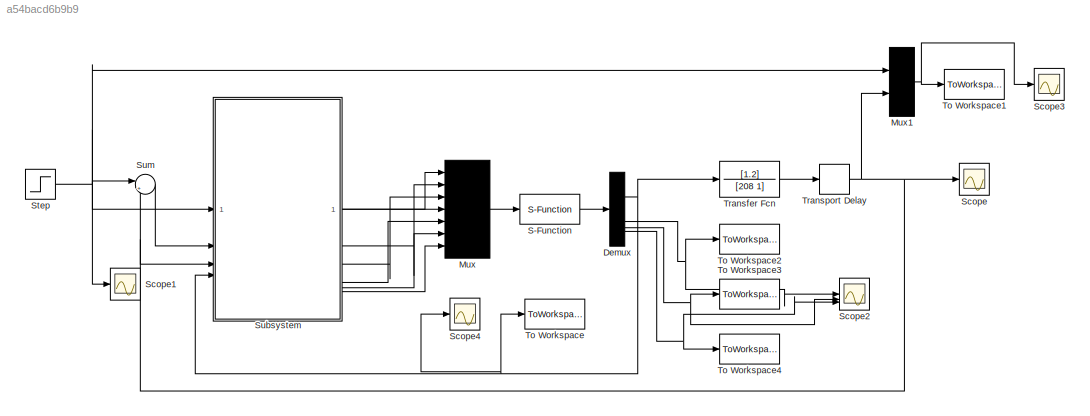
MODEL slx_a54bacd6b9b9
KIND model
CONFIG AbsTol = auto
CONFIG EnableMultiTasking = off
CONFIG FixedStep = 0.1
CONFIG MaxStep = auto
CONFIG MinStep = auto
CONFIG RelTol = 1e-3
CONFIG SampleTimeConstraint = Unconstrained
CONFIG SolverName = ode3
CONFIG StartTime = 0
CONFIG StopTime = 2000
BLOCK [Demux] Demux
BLOCK [Mux] Mux
  Inputs = 7
BLOCK [Mux] Mux1
  Inputs = 2
BLOCK [S-Function] S-Function
  EnableBusSupport = off
  FunctionName = my_exppidf
  SFcnIsStateOwnerBlock = off
  SFunctionDeploymentMode = off
BLOCK [Scope] Scope
  Floating = off
  NumInputPorts = 1
  ScopeSpecificationString = Simulink.scopes.TimeScopeBlockCfg('CurrentConfiguration', extmgr.ConfigurationSet(extmgr.Configuration('Core','General UI',true,'FigureColor',[0.156862745098039 0.156862745098039 0.156862745098039]),extmgr.Configuration('Core','Source UI',true),extmgr.Configuration('Sources','WiredSimulink',true,'DataLoggingSaveFormat','Array','DataLoggingDecimation','1','DataLoggingDecimateData',true),extmgr.Conf...<+3176ch>
BLOCK [Scope] Scope1
  Floating = off
  NumInputPorts = 1
  ScopeSpecificationString = Simulink.scopes.TimeScopeBlockCfg('CurrentConfiguration', extmgr.ConfigurationSet(extmgr.Configuration('Core','General UI',true,'FigureColor',[0.156862745098039 0.156862745098039 0.156862745098039]),extmgr.Configuration('Core','Source UI',true),extmgr.Configuration('Sources','WiredSimulink',true,'DataLoggingLimitDataPoints',true,'DataLoggingVariableName','ScopeData1','DataLoggingSaveFormat','Array...<+2846ch>
BLOCK [Scope] Scope2
  Floating = off
  NumInputPorts = 3
  ScopeSpecificationString = Simulink.scopes.TimeScopeBlockCfg('CurrentConfiguration', extmgr.ConfigurationSet(extmgr.Configuration('Core','General UI',true,'FigureColor',[0.156862745098039 0.156862745098039 0.156862745098039]),extmgr.Configuration('Core','Source UI',true),extmgr.Configuration('Sources','WiredSimulink',true,'DataLoggingVariableName','ScopeData1','DataLoggingSaveFormat','Array','DataLoggingDecimation','1','Dat...<+4732ch>
BLOCK [Scope] Scope3
  Floating = off
  NumInputPorts = 1
  ScopeSpecificationString = Simulink.scopes.TimeScopeBlockCfg('CurrentConfiguration', extmgr.ConfigurationSet(extmgr.Configuration('Core','General UI',true,'FigureColor',[0.156862745098039 0.156862745098039 0.156862745098039]),extmgr.Configuration('Core','Source UI',true),extmgr.Configuration('Sources','WiredSimulink',true,'DataLoggingVariableName','ScopeData2','DataLoggingSaveFormat','Array','DataLoggingDecimation','1','Dat...<+3269ch>
BLOCK [Scope] Scope4
  Floating = off
  NumInputPorts = 1
  ScopeSpecificationString = Simulink.scopes.TimeScopeBlockCfg('CurrentConfiguration', extmgr.ConfigurationSet(extmgr.Configuration('Core','General UI',true),extmgr.Configuration('Core','Source UI',true),extmgr.Configuration('Sources','WiredSimulink',true,'DataLoggingVariableName','ScopeData3'),extmgr.Configuration('Visuals','Time Domain',true,'SerializedDisplays',{struct('MinYLimReal','-0.07886','MaxYLimReal','0.70977','YLab...<+1455ch>
BLOCK [Step] Step
  After = 0.5
  SampleTime = 0
  Time = 1000
  ZeroCross = off
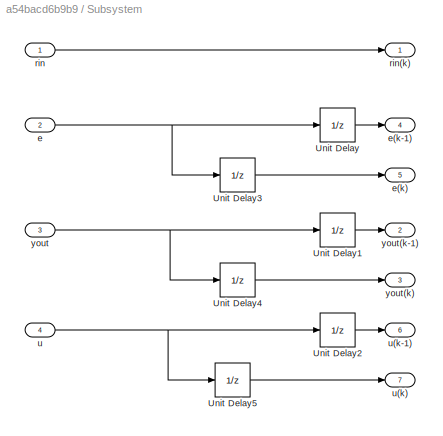
BLOCK [SubSystem] Subsystem
BLOCK [UnitDelay] Subsystem/Unit Delay
  HasFrameUpgradeWarning = on
  SampleTime = -1
BLOCK [UnitDelay] Subsystem/Unit Delay1
  HasFrameUpgradeWarning = on
  SampleTime = -1
BLOCK [UnitDelay] Subsystem/Unit Delay2
  HasFrameUpgradeWarning = on
  SampleTime = -1
BLOCK [UnitDelay] Subsystem/Unit Delay3
  HasFrameUpgradeWarning = on
  SampleTime = -1
BLOCK [UnitDelay] Subsystem/Unit Delay4
  HasFrameUpgradeWarning = on
  SampleTime = -1
BLOCK [UnitDelay] Subsystem/Unit Delay5
  HasFrameUpgradeWarning = on
  SampleTime = -1
BLOCK [Inport] Subsystem/e
  Port = 2
BLOCK [Outport] Subsystem/e(k)
  Port = 5
BLOCK [Outport] Subsystem/e(k-1)
  Port = 4
BLOCK [Inport] Subsystem/rin
BLOCK [Outport] Subsystem/rin(k)
BLOCK [Inport] Subsystem/u
  Port = 4
BLOCK [Outport] Subsystem/u(k)
  Port = 7
BLOCK [Outport] Subsystem/u(k-1)
  Port = 6
BLOCK [Inport] Subsystem/yout
  Port = 3
BLOCK [Outport] Subsystem/yout(k)
  Port = 3
BLOCK [Outport] Subsystem/yout(k-1)
  Port = 2
BLOCK [Sum] Sum
  Inputs = |+-
BLOCK [ToWorkspace] To Workspace
  FixptAsFi = on
  MaxDataPoints = inf
  SampleTime = -1
  SaveFormat = Structure With Time
  VariableName = uk
BLOCK [ToWorkspace] To Workspace1
  FixptAsFi = on
  MaxDataPoints = inf
  SampleTime = -1
  SaveFormat = Structure With Time
  VariableName = yout
BLOCK [ToWorkspace] To Workspace2
  FixptAsFi = on
  MaxDataPoints = inf
  SampleTime = -1
  SaveFormat = Structure With Time
  VariableName = Kp
BLOCK [ToWorkspace] To Workspace3
  FixptAsFi = on
  MaxDataPoints = inf
  SampleTime = -1
  SaveFormat = Structure With Time
  VariableName = Ki
BLOCK [ToWorkspace] To Workspace4
  FixptAsFi = on
  MaxDataPoints = inf
  SampleTime = -1
  SaveFormat = Structure With Time
  VariableName = Kd
BLOCK [TransferFcn] Transfer Fcn
  Denominator = [208 1]
  Numerator = [1.2]
BLOCK [TransportDelay] Transport Delay
  DelayTime = 0
NET Demux:1 -> Scope4:1, Subsystem:4, To Workspace:1, Transfer Fcn:1
NET Demux:2 -> Scope2:1, To Workspace2:1
NET Demux:3 -> Scope2:2, To Workspace3:1
NET Demux:4 -> Scope2:3, To Workspace4:1
NET Mux1:1 -> Scope3:1, To Workspace1:1
LINE Mux:1 -> S-Function:1
LINE S-Function:1 -> Demux:1
NET Step:1 -> Mux1:1, Scope1:1, Subsystem:1, Sum:1
LINE Subsystem/Unit Delay1:1 -> Subsystem/yout(k-1):1
LINE Subsystem/Unit Delay2:1 -> Subsystem/u(k-1):1
LINE Subsystem/Unit Delay3:1 -> Subsystem/e(k):1
LINE Subsystem/Unit Delay4:1 -> Subsystem/yout(k):1
LINE Subsystem/Unit Delay5:1 -> Subsystem/u(k):1
LINE Subsystem/Unit Delay:1 -> Subsystem/e(k-1):1
NET Subsystem/e:1 -> Subsystem/Unit Delay3:1, Subsystem/Unit Delay:1
LINE Subsystem/rin:1 -> Subsystem/rin(k):1
NET Subsystem/u:1 -> Subsystem/Unit Delay2:1, Subsystem/Unit Delay5:1
NET Subsystem/yout:1 -> Subsystem/Unit Delay1:1, Subsystem/Unit Delay4:1
LINE Subsystem:1 -> Mux:1
LINE Subsystem:2 -> Mux:2
LINE Subsystem:3 -> Mux:3
LINE Subsystem:4 -> Mux:4
LINE Subsystem:5 -> Mux:5
LINE Subsystem:6 -> Mux:6
LINE Subsystem:7 -> Mux:7
LINE Sum:1 -> Subsystem:2
LINE Transfer Fcn:1 -> Transport Delay:1
NET Transport Delay:1 -> Mux1:2, Scope:1, Subsystem:3, Sum:2
note: NET lines group one-source signal fan-out (src -> all destinations, sorted); 1:1 wires keep LINE
